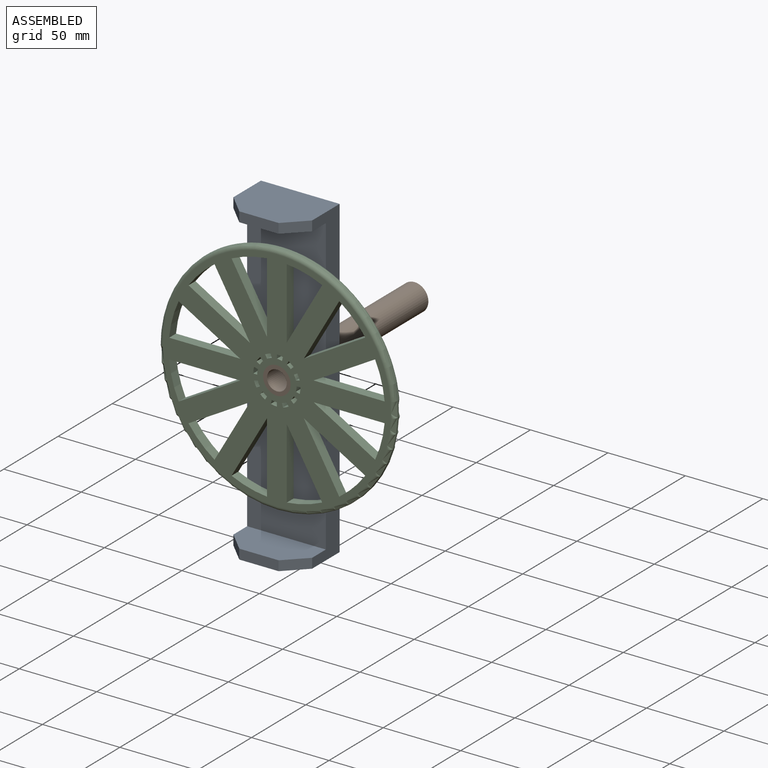
[diagram: assembled view]
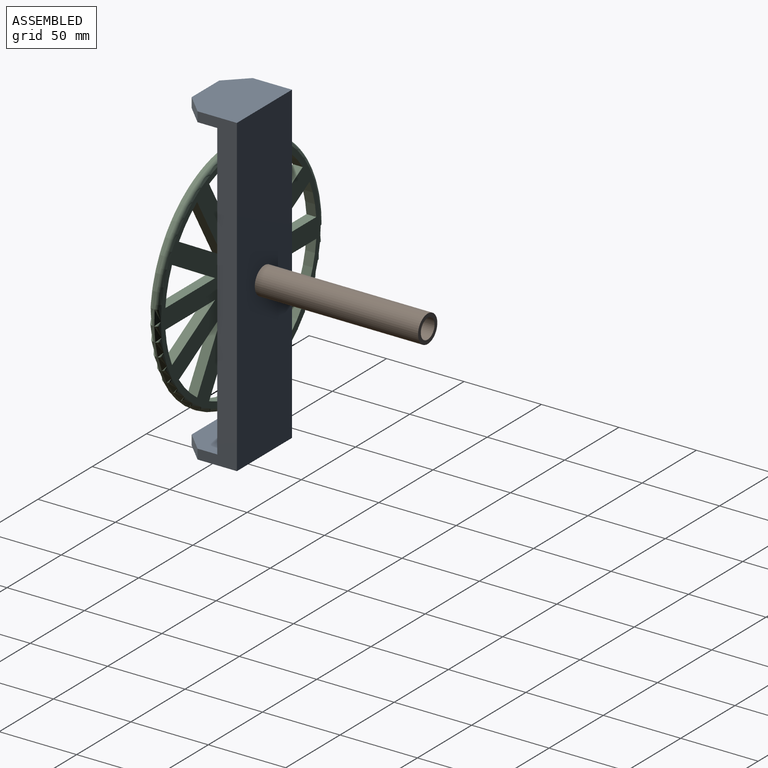
[diagram: assembled view, second angle]
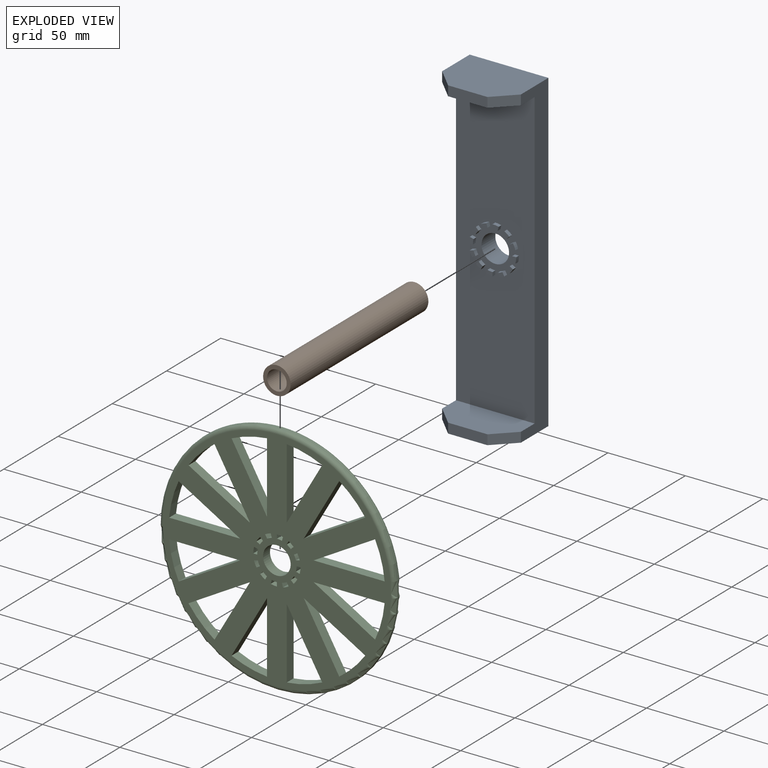
[diagram: exploded view]
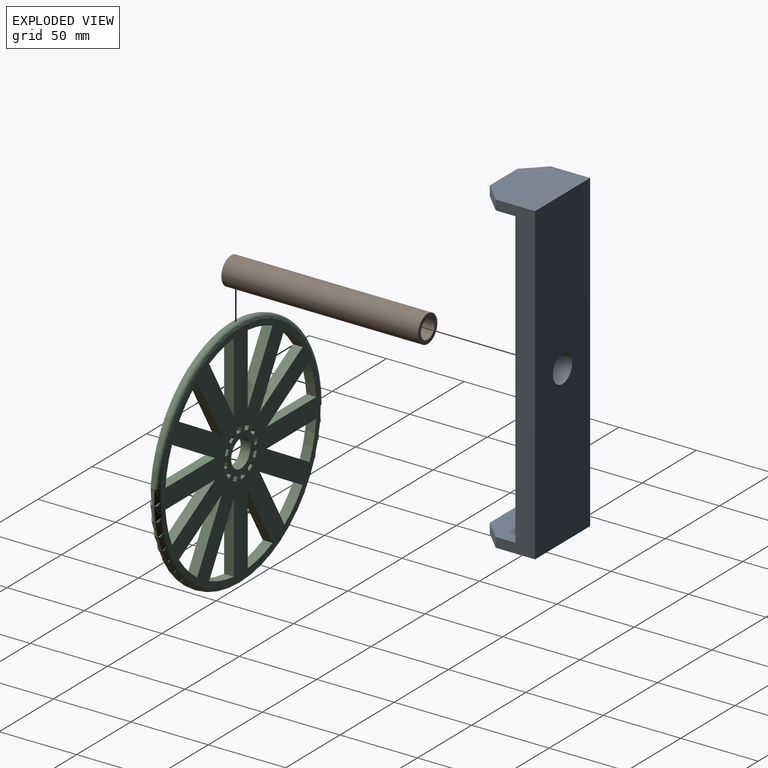
[diagram: exploded view, second angle]
ASSEMBLY  parts=3 mates=2
PART A: 75 faces, bbox 50.8x38.1x203.2 mm
  f0: plane 190.5x50.8mm, normal (0,-1,0), area 9317.6mm2, adj f2,f4,f5,f7,f8,f9,f10,f12
  f1: plane 50.8x38.1mm, normal (0,0,1), area 1774.2mm2, adj f2,f5,f6,f68,f71,f72
  f2: plane 203.2x25.4mm, normal (-1,0,0), area 2741.9mm2, adj f0,f1,f3,f6,f67,f69,f71,f74
  f3: plane 50.8x38.1mm, normal (0,0,-1), area 1774.2mm2, adj f2,f5,f6,f70,f73,f74
  f4: cylinder r=8.89mm len=17.78mm, axis (0,1,0), area 709.4mm2, adj f0,f6
  f5: plane 203.2x25.4mm, normal (1,0,0), area 2741.9mm2, adj f0,f1,f3,f6,f67,f69,f72,f73
  f6: plane 203.2x50.8mm, normal (0,1,0), area 10074.3mm2, adj f1,f2,f3,f4,f5
  f7: cylinder r=12.7mm len=3.06mm, axis (0,1,0), area 8.4mm2, adj f0,f8,f10,f11
  f8: plane 2.54x2.45mm, normal (0.26,0,-0.97), area 6.5mm2, adj f0,f7,f9,f11
  f9: cylinder r=15.24mm len=3.68mm, axis (0,1,0), area 10.1mm2, adj f0,f8,f10,f11
  f10: plane 2.54x2.2mm, normal (-0.5,0,0.87), area 6.5mm2, adj f0,f7,f9,f11
  f11: plane 4.33x3.72mm, normal (0,-1,0), area 9.3mm2, adj f7,f8,f9,f10
  f12: cylinder r=12.7mm len=2.63mm, axis (0,1,0), area 8.4mm2, adj f0,f13,f15,f16
  f13: plane 2.54x1.8mm, normal (0.71,0,-0.71), area 6.5mm2, adj f0,f12,f14,f16
  f14: cylinder r=15.24mm len=3.16mm, axis (0,1,0), area 10.1mm2, adj f0,f13,f15,f16
  f15: plane 2.54x2.2mm, normal (-0.87,0,0.5), area 6.5mm2, adj f0,f12,f14,f16
  f16: plane 4.43x4.22mm, normal (0,-1,0), area 9.3mm2, adj f12,f13,f14,f15
  f17: cylinder r=12.7mm len=3.29mm, axis (0,1,0), area 8.4mm2, adj f0,f18,f20,f21
  f18: plane 2.54x2.45mm, normal (0.97,0,-0.26), area 6.5mm2, adj f0,f17,f19,f21
  f19: cylinder r=15.24mm len=3.94mm, axis (0,1,0), area 10.1mm2, adj f0,f18,f20,f21
  f20: plane 2.54x2.54mm, normal (-1,0,0), area 6.5mm2, adj f0,f17,f19,f21
  f21: plane 3.94x2.97mm, normal (0,-1,0), area 9.3mm2, adj f17,f18,f19,f20
  f22: plane 2.54x2.45mm, normal (0.97,0,0.26), area 6.5mm2, adj f0,f23,f25,f26
  f23: cylinder r=15.24mm len=3.68mm, axis (0,1,0), area 10.1mm2, adj f0,f22,f24,f26
  f24: plane 2.54x2.2mm, normal (-0.87,0,-0.5), area 6.5mm2, adj f0,f23,f25,f26
  f25: cylinder r=12.7mm len=3.06mm, axis (0,1,0), area 8.4mm2, adj f0,f22,f24,f26
  f26: plane 4.33x3.72mm, normal (0,-1,0), area 9.3mm2, adj f22,f23,f24,f25
  f27: plane 2.54x1.8mm, normal (0.71,0,0.71), area 6.5mm2, adj f0,f28,f30,f31
  f28: cylinder r=15.24mm len=3.16mm, axis (0,1,0), area 10.1mm2, adj f0,f27,f29,f31
  f29: plane 2.54x2.2mm, normal (-0.5,0,-0.87), area 6.5mm2, adj f0,f28,f30,f31
  f30: cylinder r=12.7mm len=2.63mm, axis (0,1,0), area 8.4mm2, adj f0,f27,f29,f31
  f31: plane 4.43x4.22mm, normal (0,-1,0), area 9.3mm2, adj f27,f28,f29,f30
  f32: plane 2.54x2.45mm, normal (0.26,0,0.97), area 6.5mm2, adj f0,f33,f35,f36
  f33: cylinder r=15.24mm len=3.94mm, axis (0,1,0), area 10.1mm2, adj f0,f32,f34,f36
  f34: plane 2.54x2.54mm, normal (0,0,-1), area 6.5mm2, adj f0,f33,f35,f36
  f35: cylinder r=12.7mm len=3.29mm, axis (0,1,0), area 8.4mm2, adj f0,f32,f34,f36
  f36: plane 3.94x2.97mm, normal (0,-1,0), area 9.3mm2, adj f32,f33,f34,f35
  f37: cylinder r=12.7mm len=3.06mm, axis (0,1,0), area 8.4mm2, adj f0,f38,f40,f41
  f38: plane 2.54x2.45mm, normal (-0.26,0,0.97), area 6.5mm2, adj f0,f37,f39,f41
  f39: cylinder r=15.24mm len=3.68mm, axis (0,1,0), area 10.1mm2, adj f0,f38,f40,f41
  f40: plane 2.54x2.2mm, normal (0.5,0,-0.87), area 6.5mm2, adj f0,f37,f39,f41
  f41: plane 4.33x3.72mm, normal (0,-1,0), area 9.3mm2, adj f37,f38,f39,f40
  f42: cylinder r=12.7mm len=2.63mm, axis (0,1,0), area 8.4mm2, adj f0,f43,f45,f46
  f43: plane 2.54x1.8mm, normal (-0.71,0,0.71), area 6.5mm2, adj f0,f42,f44,f46
  f44: cylinder r=15.24mm len=3.16mm, axis (0,1,0), area 10.1mm2, adj f0,f43,f45,f46
  f45: plane 2.54x2.2mm, normal (0.87,0,-0.5), area 6.5mm2, adj f0,f42,f44,f46
  f46: plane 4.43x4.22mm, normal (0,-1,0), area 9.3mm2, adj f42,f43,f44,f45
  f47: cylinder r=12.7mm len=3.29mm, axis (0,1,0), area 8.4mm2, adj f0,f48,f50,f51
  f48: plane 2.54x2.45mm, normal (-0.97,0,0.26), area 6.5mm2, adj f0,f47,f49,f51
  f49: cylinder r=15.24mm len=3.94mm, axis (0,1,0), area 10.1mm2, adj f0,f48,f50,f51
  f50: plane 2.54x2.54mm, normal (1,0,0), area 6.5mm2, adj f0,f47,f49,f51
  f51: plane 3.94x2.97mm, normal (0,-1,0), area 9.3mm2, adj f47,f48,f49,f50
  f52: cylinder r=12.7mm len=3.06mm, axis (0,1,0), area 8.4mm2, adj f0,f53,f55,f56
  f53: plane 2.54x2.45mm, normal (-0.97,0,-0.26), area 6.5mm2, adj f0,f52,f54,f56
  f54: cylinder r=15.24mm len=3.68mm, axis (0,1,0), area 10.1mm2, adj f0,f53,f55,f56
  f55: plane 2.54x2.2mm, normal (0.87,0,0.5), area 6.5mm2, adj f0,f52,f54,f56
  f56: plane 4.33x3.72mm, normal (0,-1,0), area 9.3mm2, adj f52,f53,f54,f55
  f57: cylinder r=12.7mm len=2.63mm, axis (0,1,0), area 8.4mm2, adj f0,f58,f60,f61
  f58: plane 2.54x1.8mm, normal (-0.71,0,-0.71), area 6.5mm2, adj f0,f57,f59,f61
  f59: cylinder r=15.24mm len=3.16mm, axis (0,1,0), area 10.1mm2, adj f0,f58,f60,f61
  f60: plane 2.54x2.2mm, normal (0.5,0,0.87), area 6.5mm2, adj f0,f57,f59,f61
  f61: plane 4.43x4.22mm, normal (0,-1,0), area 9.3mm2, adj f57,f58,f59,f60
  f62: cylinder r=12.7mm len=3.29mm, axis (0,1,0), area 8.4mm2, adj f0,f63,f65,f66
  f63: plane 2.54x2.45mm, normal (-0.26,0,-0.97), area 6.5mm2, adj f0,f62,f64,f66
  f64: cylinder r=15.24mm len=3.94mm, axis (0,1,0), area 10.1mm2, adj f0,f63,f65,f66
  f65: plane 2.54x2.54mm, normal (0,0,1), area 6.5mm2, adj f0,f62,f64,f66
  f66: plane 3.94x2.97mm, normal (0,-1,0), area 9.3mm2, adj f62,f63,f64,f65
  f67: plane 50.8x25.4mm, normal (0,0,-1), area 1129mm2, adj f0,f2,f5,f68,f71,f72
  f68: plane 25.4x6.35mm, normal (0,-1,0), area 161.3mm2, adj f1,f67,f71,f72
  f69: plane 50.8x25.4mm, normal (0,0,1), area 1129mm2, adj f0,f2,f5,f70,f73,f74
  f70: plane 25.4x6.35mm, normal (0,-1,0), area 161.3mm2, adj f3,f69,f73,f74
  f71: plane 12.7x12.7mm, normal (-0.71,-0.71,0), area 114mm2, adj f1,f2,f67,f68
  f72: plane 12.7x12.7mm, normal (0.71,-0.71,0), area 114mm2, adj f1,f5,f67,f68
  f73: plane 12.7x12.7mm, normal (0.71,-0.71,0), area 114mm2, adj f3,f5,f69,f70
  f74: plane 12.7x12.7mm, normal (-0.71,-0.71,0), area 114mm2, adj f2,f3,f69,f70
PART B: 4 faces, bbox 17.8x127x17.8 mm
  f0: cylinder r=6.35mm len=127mm, axis (0,1,0), area 5067.1mm2, adj f2,f3
  f1: cylinder r=8.89mm len=127mm, axis (0,1,0), area 7093.9mm2, adj f2,f3
  f2: plane 17.78x17.78mm, normal (0,-1,0), area 121.6mm2, adj f0,f1
  f3: plane 17.78x17.78mm, normal (0,1,0), area 121.6mm2, adj f0,f1
PART C: 90 faces, bbox 165x6.4x165 mm
  f0: cylinder r=15.24mm len=6.35mm, axis (0,1,0), area 25.3mm2, adj f1,f85,f86,f87
  f1: plane 6.35x1.8mm, normal (0.71,0,-0.71), area 16.1mm2, adj f0,f2,f86,f87
  f2: cylinder r=12.7mm len=6.35mm, axis (0,1,0), area 21.1mm2, adj f1,f85,f86,f87
  f3: cylinder r=15.24mm len=6.35mm, axis (0,1,0), area 25.3mm2, adj f4,f61,f86,f87
  f4: plane 6.35x1.8mm, normal (-0.71,0,-0.71), area 16.1mm2, adj f3,f5,f86,f87
  f5: cylinder r=12.7mm len=6.35mm, axis (0,1,0), area 21.1mm2, adj f4,f61,f86,f87
  f6: plane 6.35x2.54mm, normal (-1,0,0), area 16.1mm2, adj f7,f62,f86,f87
  f7: cylinder r=15.24mm len=6.35mm, axis (0,1,0), area 25.3mm2, adj f6,f8,f86,f87
  f8: plane 6.35x2.45mm, normal (0.97,0,-0.26), area 16.1mm2, adj f7,f62,f86,f87
  f9: plane 6.35x2.2mm, normal (-0.87,0,-0.5), area 16.1mm2, adj f10,f63,f86,f87
  f10: cylinder r=15.24mm len=6.35mm, axis (0,1,0), area 25.3mm2, adj f9,f11,f86,f87
  f11: plane 6.35x2.45mm, normal (0.97,0,0.26), area 16.1mm2, adj f10,f63,f86,f87
  f12: cylinder r=15.24mm len=6.35mm, axis (0,1,0), area 25.3mm2, adj f13,f64,f86,f87
  f13: plane 6.35x1.8mm, normal (0.71,0,0.71), area 16.1mm2, adj f12,f14,f86,f87
  f14: cylinder r=12.7mm len=6.35mm, axis (0,1,0), area 21.1mm2, adj f13,f64,f86,f87
  f15: plane 6.35x2.54mm, normal (0,0,-1), area 16.1mm2, adj f16,f65,f86,f87
  f16: cylinder r=15.24mm len=6.35mm, axis (0,1,0), area 25.3mm2, adj f15,f17,f86,f87
  f17: plane 6.35x2.45mm, normal (0.26,0,0.97), area 16.1mm2, adj f16,f65,f86,f87
  f18: plane 6.35x2.2mm, normal (0.5,0,-0.87), area 16.1mm2, adj f19,f66,f86,f87
  f19: cylinder r=15.24mm len=6.35mm, axis (0,1,0), area 25.3mm2, adj f18,f20,f86,f87
  f20: plane 6.35x2.45mm, normal (-0.26,0,0.97), area 16.1mm2, adj f19,f66,f86,f87
  f21: cylinder r=15.24mm len=6.35mm, axis (0,1,0), area 25.3mm2, adj f22,f67,f86,f87
  f22: plane 6.35x1.8mm, normal (-0.71,0,0.71), area 16.1mm2, adj f21,f23,f86,f87
  f23: cylinder r=12.7mm len=6.35mm, axis (0,1,0), area 21.1mm2, adj f22,f67,f86,f87
  f24: cylinder r=12.7mm len=6.35mm, axis (0,1,0), area 21.1mm2, adj f25,f68,f86,f87
  f25: plane 6.35x2.54mm, normal (1,0,0), area 16.1mm2, adj f24,f26,f86,f87
  f26: cylinder r=15.24mm len=6.35mm, axis (0,1,0), area 25.3mm2, adj f25,f68,f86,f87
  f27: plane 6.35x2.45mm, normal (-0.97,0,-0.26), area 16.1mm2, adj f28,f69,f86,f87
  f28: cylinder r=12.7mm len=6.35mm, axis (0,1,0), area 21.1mm2, adj f27,f29,f86,f87
  f29: plane 6.35x2.2mm, normal (0.87,0,0.5), area 16.1mm2, adj f28,f69,f86,f87
  f30: plane 6.35x2.54mm, normal (0,0,1), area 16.1mm2, adj f31,f70,f86,f87
  f31: cylinder r=15.24mm len=6.35mm, axis (0,1,0), area 25.3mm2, adj f30,f32,f86,f87
  f32: plane 6.35x2.45mm, normal (-0.26,0,-0.97), area 16.1mm2, adj f31,f70,f86,f87
  f33: cylinder r=15.24mm len=6.35mm, axis (0,1,0), area 25.3mm2, adj f34,f71,f86,f87
  f34: plane 6.35x2.45mm, normal (0.26,0,-0.97), area 16.1mm2, adj f33,f35,f86,f87
  f35: cylinder r=12.7mm len=6.35mm, axis (0,1,0), area 21.1mm2, adj f34,f71,f86,f87
  f36: plane 39.72x22.93mm, normal (0.87,0,0.5), area 291.2mm2, adj f37,f72,f86,f87
  f37: cylinder r=69.85mm len=22.93mm, axis (0,1,0), area 151.5mm2, adj f36,f72,f86,f87
  f38: cylinder r=69.85mm len=16.79mm, axis (0,1,0), area 151.5mm2, adj f39,f73,f86,f87
  f39: plane 39.72x22.93mm, normal (0.5,0,-0.87), area 291.2mm2, adj f38,f73,f86,f87
  f40: cylinder r=69.85mm len=22.93mm, axis (0,1,0), area 151.5mm2, adj f41,f74,f86,f87
  f41: plane 45.86x6.35mm, normal (0,0,-1), area 291.2mm2, adj f40,f74,f86,f87
  f42: cylinder r=69.85mm len=22.93mm, axis (0,1,0), area 151.5mm2, adj f43,f75,f86,f87
  f43: plane 39.72x22.93mm, normal (0.5,0,0.87), area 291.2mm2, adj f42,f75,f86,f87
  f44: plane 39.72x22.93mm, normal (0.87,0,-0.5), area 291.2mm2, adj f45,f76,f86,f87
  f45: cylinder r=69.85mm len=16.79mm, axis (0,1,0), area 151.5mm2, adj f44,f76,f86,f87
  f46: cylinder r=69.85mm len=16.79mm, axis (0,1,0), area 151.5mm2, adj f47,f77,f86,f87
  f47: plane 39.72x22.93mm, normal (0.87,0,0.5), area 291.2mm2, adj f46,f77,f86,f87
  f48: plane 39.72x22.93mm, normal (-0.87,0,-0.5), area 291.2mm2, adj f49,f78,f86,f87
  f49: cylinder r=69.85mm len=22.93mm, axis (0,1,0), area 151.5mm2, adj f48,f78,f86,f87
  f50: plane 45.86x6.35mm, normal (0,0,1), area 291.2mm2, adj f51,f79,f86,f87
  f51: plane 39.72x22.93mm, normal (0.5,0,-0.87), area 291.2mm2, adj f50,f79,f86,f87
  f52: cylinder r=69.85mm len=22.93mm, axis (0,1,0), area 151.5mm2, adj f53,f80,f86,f87
  f53: plane 39.72x22.93mm, normal (0.87,0,-0.5), area 291.2mm2, adj f52,f80,f86,f87
  f54: cylinder r=69.85mm len=22.93mm, axis (0,1,0), area 151.5mm2, adj f55,f81,f86,f87
  f55: plane 39.72x22.93mm, normal (-0.87,0,0.5), area 291.2mm2, adj f54,f81,f86,f87
  f56: plane 39.72x22.93mm, normal (0.5,0,0.87), area 291.2mm2, adj f57,f82,f86,f87
  f57: cylinder r=69.85mm len=16.79mm, axis (0,1,0), area 151.5mm2, adj f56,f82,f86,f87
  f58: plane 45.86x6.35mm, normal (0,0,1), area 291.2mm2, adj f59,f84,f86,f87
  f59: cylinder r=69.85mm len=22.93mm, axis (0,1,0), area 151.5mm2, adj f58,f84,f86,f87
  f60: cylinder r=8.89mm len=17.78mm, axis (0,1,0), area 354.7mm2, adj f86,f87
  f61: plane 6.35x2.2mm, normal (0.5,0,0.87), area 16.1mm2, adj f3,f5,f86,f87
  f62: cylinder r=12.7mm len=6.35mm, axis (0,1,0), area 21.1mm2, adj f6,f8,f86,f87
  f63: cylinder r=12.7mm len=6.35mm, axis (0,1,0), area 21.1mm2, adj f9,f11,f86,f87
  f64: plane 6.35x2.2mm, normal (-0.5,0,-0.87), area 16.1mm2, adj f12,f14,f86,f87
  f65: cylinder r=12.7mm len=6.35mm, axis (0,1,0), area 21.1mm2, adj f15,f17,f86,f87
  f66: cylinder r=12.7mm len=6.35mm, axis (0,1,0), area 21.1mm2, adj f18,f20,f86,f87
  f67: plane 6.35x2.2mm, normal (0.87,0,-0.5), area 16.1mm2, adj f21,f23,f86,f87
  f68: plane 6.35x2.45mm, normal (-0.97,0,0.26), area 16.1mm2, adj f24,f26,f86,f87
  f69: cylinder r=15.24mm len=6.35mm, axis (0,1,0), area 25.3mm2, adj f27,f29,f86,f87
  f70: cylinder r=12.7mm len=6.35mm, axis (0,1,0), area 21.1mm2, adj f30,f32,f86,f87
  f71: plane 6.35x2.2mm, normal (-0.5,0,0.87), area 16.1mm2, adj f33,f35,f86,f87
  f72: plane 45.86x6.35mm, normal (-1,0,0), area 291.2mm2, adj f36,f37,f86,f87
  f73: plane 39.72x22.93mm, normal (-0.87,0,0.5), area 291.2mm2, adj f38,f39,f86,f87
  f74: plane 39.72x22.93mm, normal (-0.5,0,0.87), area 291.2mm2, adj f40,f41,f86,f87
  f75: plane 45.86x6.35mm, normal (0,0,-1), area 291.2mm2, adj f42,f43,f86,f87
  f76: plane 39.72x22.93mm, normal (-0.5,0,0.87), area 291.2mm2, adj f44,f45,f86,f87
  f77: plane 39.72x22.93mm, normal (-0.5,0,-0.87), area 291.2mm2, adj f46,f47,f86,f87
  f78: plane 45.86x6.35mm, normal (1,0,0), area 291.2mm2, adj f48,f49,f86,f87
  f79: cylinder r=69.85mm len=22.93mm, axis (0,1,0), area 151.5mm2, adj f50,f51,f86,f87
  f80: plane 45.86x6.35mm, normal (-1,0,0), area 291.2mm2, adj f52,f53,f86,f87
  f81: plane 45.86x6.35mm, normal (1,0,0), area 291.2mm2, adj f54,f55,f86,f87
  f82: plane 39.72x22.93mm, normal (-0.87,0,-0.5), area 291.2mm2, adj f56,f57,f86,f87
  f83: cylinder r=76.2mm len=152.4mm, axis (0,1,0), area 608mm2, adj f88,f89
  f84: plane 39.72x22.93mm, normal (-0.5,0,-0.87), area 291.2mm2, adj f58,f59,f86,f87
  f85: plane 6.35x2.2mm, normal (-0.87,0,0.5), area 16.1mm2, adj f0,f2,f86,f87
  f86: plane 147.32x147.32mm, normal (0,-1,0), area 10182.6mm2, adj f0,f1,f2,f3,f4,f5,f6,f7
  f87: plane 147.32x147.32mm, normal (0,1,0), area 10182.6mm2, adj f0,f1,f2,f3,f4,f5,f6,f7
  f88: torus R=73.66mm, axis (0,-1,0), area 1887.1mm2, adj f83,f87
  f89: torus R=73.66mm, axis (0,-1,0), area 1887.1mm2, adj f83,f86
PLACE A t=(-67.04,-30.7,-7.4)mm
PLACE B t=(-67.04,74.71,-7.4)mm
PLACE C t=(-67.04,-45.94,-7.4)mm
MATE fastened A.f7 <-> C.f2  axis (0,-1,0) through (-67.04,-43.4,-7.4)mm
MATE revolute B.f1 <-> C.f63  axis (0,-1,0) through (-67.04,-52.29,-7.4)mm
